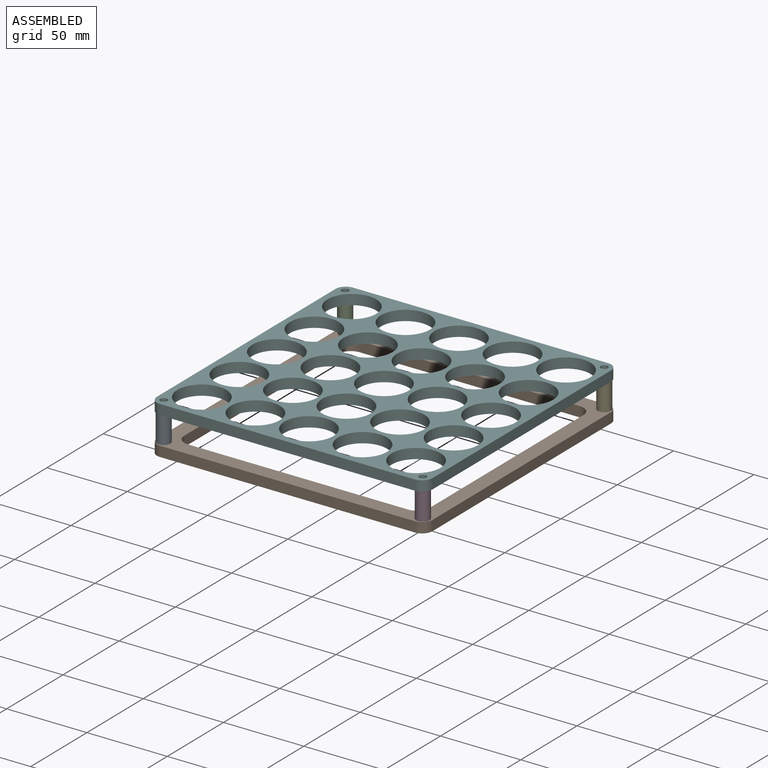
[diagram: assembled view]
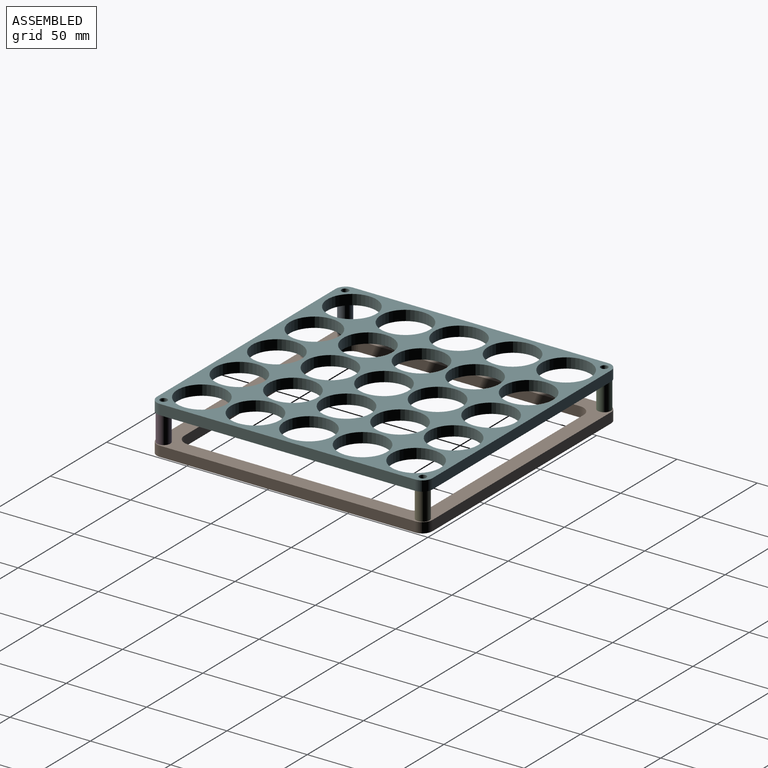
[diagram: assembled view, second angle]
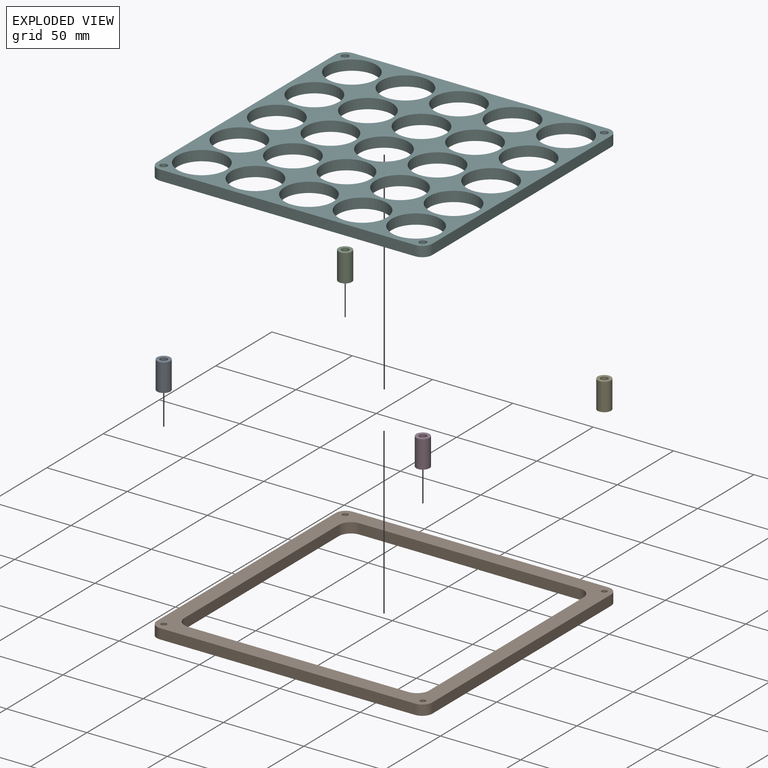
[diagram: exploded view]
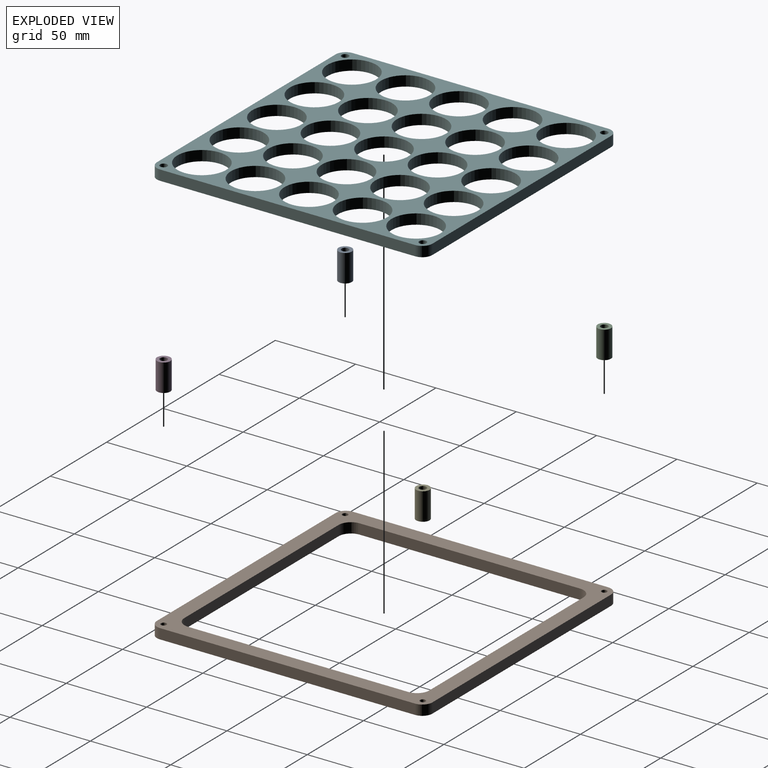
[diagram: exploded view, second angle]
ASSEMBLY  parts=6 mates=5
PART A: 4 faces, bbox 8.3x8.3x17.1 mm
  f0: cylinder r=4.13mm len=17.15mm, axis (0,0,-1), area 444.6mm2, adj f1,f2
  f1: plane 8.26x8.26mm, normal (0,0,1), area 37.6mm2, adj f0,f3
  f2: plane 8.26x8.26mm, normal (0,0,-1), area 37.6mm2, adj f0,f3
  f3: cylinder r=2.25mm len=17.15mm, axis (0,0,1), area 242.2mm2, adj f1,f2
PART B: 22 faces, bbox 171.5x171.5x6.4 mm
  f0: plane 171.45x171.45mm, normal (0,0,1), area 6147.1mm2, adj f2,f3,f4,f5,f6,f7,f8,f9
  f1: plane 171.45x171.45mm, normal (0,0,-1), area 6147.1mm2, adj f2,f3,f4,f5,f6,f7,f8,f9
  f2: plane 158.75x6.35mm, normal (0,1,0), area 1008.1mm2, adj f0,f1,f6,f9
  f3: plane 158.75x6.35mm, normal (-1,0,0), area 1008.1mm2, adj f0,f1,f6,f7
  f4: plane 158.75x6.35mm, normal (0,-1,0), area 1008.1mm2, adj f0,f1,f7,f8
  f5: plane 158.75x6.35mm, normal (1,0,0), area 1008.1mm2, adj f0,f1,f8,f9
  f6: cylinder r=6.35mm len=6.35mm, axis (0,0,1), area 63.3mm2, adj f0,f1,f2,f3
  f7: cylinder r=6.35mm len=6.35mm, axis (0,0,-1), area 63.3mm2, adj f0,f1,f3,f4
  f8: cylinder r=6.35mm len=6.35mm, axis (0,0,1), area 63.3mm2, adj f0,f1,f4,f5
  f9: cylinder r=6.35mm len=6.35mm, axis (0,0,-1), area 63.3mm2, adj f0,f1,f2,f5
  f10: cylinder r=1.73mm len=6.35mm, axis (0,0,1), area 68.9mm2, adj f0,f1
  f11: cylinder r=1.73mm len=6.35mm, axis (0,0,1), area 68.9mm2, adj f0,f1
  f12: cylinder r=1.73mm len=6.35mm, axis (0,0,1), area 68.9mm2, adj f0,f1
  f13: cylinder r=1.73mm len=6.35mm, axis (0,0,1), area 68.9mm2, adj f0,f1
  f14: plane 137.16x6.35mm, normal (0,-1,0), area 871mm2, adj f0,f1,f18,f21
  f15: plane 137.16x6.35mm, normal (1,0,0), area 871mm2, adj f0,f1,f18,f19
  f16: plane 137.16x6.35mm, normal (0,1,0), area 871mm2, adj f0,f1,f19,f20
  f17: plane 137.16x6.35mm, normal (-1,0,0), area 871mm2, adj f0,f1,f20,f21
  f18: cylinder r=7.62mm len=7.62mm, axis (0,0,1), area 76mm2, adj f0,f1,f14,f15
  f19: cylinder r=7.62mm len=7.62mm, axis (0,0,-1), area 76mm2, adj f0,f1,f15,f16
  f20: cylinder r=7.62mm len=7.62mm, axis (0,0,1), area 76mm2, adj f0,f1,f16,f17
  f21: cylinder r=7.62mm len=7.62mm, axis (0,0,-1), area 76mm2, adj f0,f1,f14,f17
PART C: same geometry as A
PART D: same geometry as A
PART E: same geometry as A
PART F: 39 faces, bbox 171.5x171.5x6.4 mm
  f0: plane 171.45x171.45mm, normal (0,0,1), area 11055.5mm2, adj f2,f3,f4,f5,f6,f7,f8,f9
  f1: plane 171.45x171.45mm, normal (0,0,-1), area 11055.5mm2, adj f2,f3,f4,f5,f6,f7,f8,f9
  f2: plane 158.75x6.35mm, normal (0,1,0), area 1008.1mm2, adj f0,f1,f6,f9
  f3: plane 158.75x6.35mm, normal (-1,0,0), area 1008.1mm2, adj f0,f1,f6,f7
  f4: plane 158.75x6.35mm, normal (0,-1,0), area 1008.1mm2, adj f0,f1,f7,f8
  f5: plane 158.75x6.35mm, normal (1,0,0), area 1008.1mm2, adj f0,f1,f8,f9
  f6: cylinder r=6.35mm len=6.35mm, axis (0,0,1), area 63.3mm2, adj f0,f1,f2,f3
  f7: cylinder r=6.35mm len=6.35mm, axis (0,0,-1), area 63.3mm2, adj f0,f1,f3,f4
  f8: cylinder r=6.35mm len=6.35mm, axis (0,0,1), area 63.3mm2, adj f0,f1,f4,f5
  f9: cylinder r=6.35mm len=6.35mm, axis (0,0,-1), area 63.3mm2, adj f0,f1,f2,f5
  f10: cylinder r=15.24mm len=30.48mm, axis (0,0,1), area 608mm2, adj f0,f1
  f11: cylinder r=15.24mm len=30.48mm, axis (0,0,1), area 608mm2, adj f0,f1
  f12: cylinder r=15.24mm len=30.48mm, axis (0,0,1), area 608mm2, adj f0,f1
  f13: cylinder r=15.24mm len=30.48mm, axis (0,0,1), area 608mm2, adj f0,f1
  f14: cylinder r=15.24mm len=30.48mm, axis (0,0,1), area 608mm2, adj f0,f1
  f15: cylinder r=15.24mm len=30.48mm, axis (0,0,1), area 608mm2, adj f0,f1
  f16: cylinder r=15.24mm len=30.48mm, axis (0,0,1), area 608mm2, adj f0,f1
  f17: cylinder r=15.24mm len=30.48mm, axis (0,0,1), area 608mm2, adj f0,f1
  f18: cylinder r=15.24mm len=30.48mm, axis (0,0,1), area 608mm2, adj f0,f1
  f19: cylinder r=15.24mm len=30.48mm, axis (0,0,1), area 608mm2, adj f0,f1
  f20: cylinder r=15.24mm len=30.48mm, axis (0,0,1), area 608mm2, adj f0,f1
  f21: cylinder r=15.24mm len=30.48mm, axis (0,0,1), area 608mm2, adj f0,f1
  f22: cylinder r=15.24mm len=30.48mm, axis (0,0,1), area 608mm2, adj f0,f1
  f23: cylinder r=15.24mm len=30.48mm, axis (0,0,1), area 608mm2, adj f0,f1
  f24: cylinder r=15.24mm len=30.48mm, axis (0,0,1), area 608mm2, adj f0,f1
  f25: cylinder r=15.24mm len=30.48mm, axis (0,0,1), area 608mm2, adj f0,f1
  f26: cylinder r=15.24mm len=30.48mm, axis (0,0,1), area 608mm2, adj f0,f1
  f27: cylinder r=15.24mm len=30.48mm, axis (0,0,1), area 608mm2, adj f0,f1
  f28: cylinder r=15.24mm len=30.48mm, axis (0,0,1), area 608mm2, adj f0,f1
  f29: cylinder r=15.24mm len=30.48mm, axis (0,0,1), area 608mm2, adj f0,f1
  f30: cylinder r=15.24mm len=30.48mm, axis (0,0,1), area 608mm2, adj f0,f1
  f31: cylinder r=15.24mm len=30.48mm, axis (0,0,1), area 608mm2, adj f0,f1
  f32: cylinder r=15.24mm len=30.48mm, axis (0,0,1), area 608mm2, adj f0,f1
  f33: cylinder r=15.24mm len=30.48mm, axis (0,0,1), area 608mm2, adj f0,f1
  f34: cylinder r=15.24mm len=30.48mm, axis (0,0,1), area 608mm2, adj f0,f1
  f35: cylinder r=2.25mm len=6.35mm, axis (0,0,1), area 89.7mm2, adj f0,f1
  f36: cylinder r=2.25mm len=6.35mm, axis (0,0,1), area 89.7mm2, adj f0,f1
  f37: cylinder r=2.25mm len=6.35mm, axis (0,0,1), area 89.7mm2, adj f0,f1
  f38: cylinder r=2.25mm len=6.35mm, axis (0,0,1), area 89.7mm2, adj f0,f1
PLACE A t=(-80.68,-37.92,-24.64)mm
PLACE B t=(-0.04,42.73,-30.99)mm fixed
PLACE C t=(-80.68,123.37,-24.64)mm
PLACE D t=(80.61,-37.92,-24.64)mm
PLACE E t=(80.61,123.37,-24.64)mm
PLACE F t=(-0.04,42.73,-7.5)mm
MATE fastened E.f0 <-> B.f13  axis (0,0,-1) through (80.61,123.37,-24.64)mm
MATE fastened D.f3 <-> B.f11  axis (0,0,1) through (80.61,-37.92,-24.64)mm
MATE fastened C.f0 <-> B.f10  axis (0,0,-1) through (-80.68,123.37,-24.64)mm
MATE fastened F.f38 <-> E.f3  axis (0,0,-1) through (80.61,123.37,-7.5)mm
MATE fastened A.f3 <-> B.f12  axis (0,0,-1) through (-80.68,-37.92,-24.64)mm
